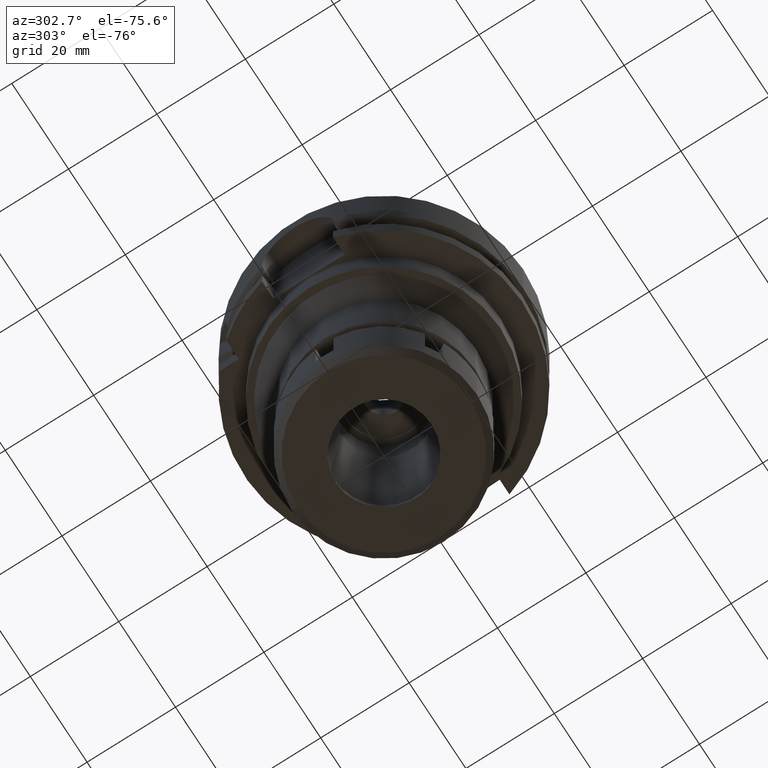
[diagram: clean part render]
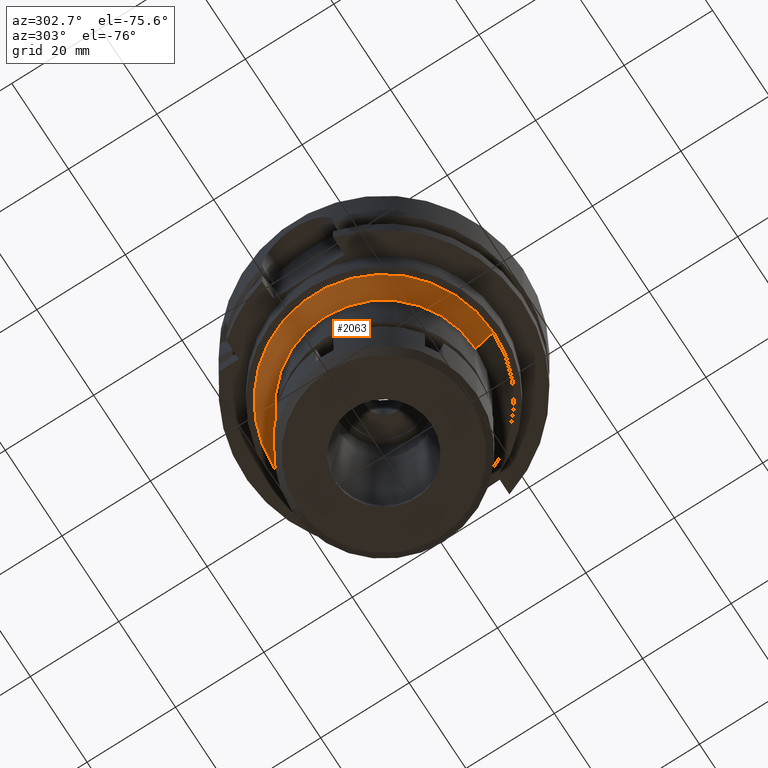
[diagram: same view with one face highlighted and labeled with its STEP entity id]
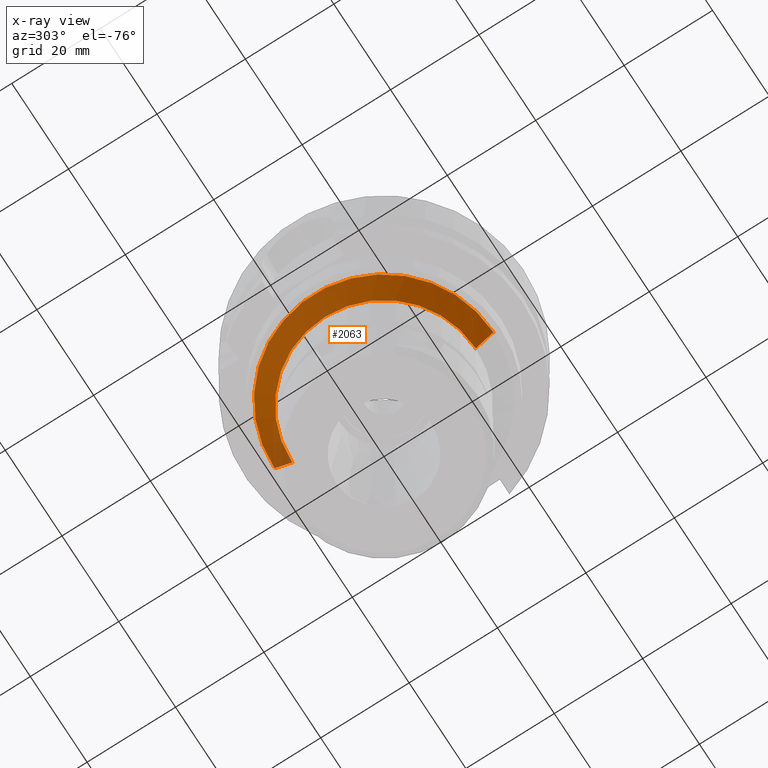
[diagram: x-ray of the same camera — body ghosted, the highlighted face saturated]
A machine part, auxiliary view. The second image highlights one B-rep face of the part: STEP entity #2063.
The next image is the same camera in x-ray: the body ghosted, the highlighted face saturated — about 5% of this face is hidden behind the body in this view.
In plain terms, the highlighted conical surface has half-angle 45 deg.
Its self-contained STEP definition (entity closure, byte-faithful):
#21 = CARTESIAN_POINT ( 'NONE',  ( 0.0000000000000000000, 0.0000000000000000000, -36.00000000000000000 ) ) ;
#33 = DIRECTION ( 'NONE',  ( 0.0000000000000000000, 0.0000000000000000000, -1.000000000000000000 ) ) ;
#341 = AXIS2_PLACEMENT_3D ( 'NONE', #21, #1966, #5797 ) ;
#431 = FACE_OUTER_BOUND ( 'NONE', #521, .T. ) ;
#521 = EDGE_LOOP ( 'NONE', ( #2739, #4100, #4297, #1527 ) ) ;
#627 = VERTEX_POINT ( 'NONE', #947 ) ;
#639 = CARTESIAN_POINT ( 'NONE',  ( 0.0000000000000000000, -20.75000000000000000, -38.00000000000000000 ) ) ;
#729 = VERTEX_POINT ( 'NONE', #1762 ) ;
#731 = CIRCLE ( 'NONE', #5805, 20.75000000000000000 ) ;
#887 = CARTESIAN_POINT ( 'NONE',  ( 0.0000000000000000000, 0.0000000000000000000, -34.00000000000000000 ) ) ;
#904 = DIRECTION ( 'NONE',  ( 0.0000000000000000000, 0.7071067811865474617, -0.7071067811865474617 ) ) ;
#924 = VERTEX_POINT ( 'NONE', #639 ) ;
#947 = CARTESIAN_POINT ( 'NONE',  ( 0.0000000000000000000, 20.75000000000000000, -38.00000000000000000 ) ) ;
#1409 = DIRECTION ( 'NONE',  ( 0.0000000000000000000, -0.7071067811865474617, -0.7071067811865474617 ) ) ;
#1431 = DIRECTION ( 'NONE',  ( 0.0000000000000000000, -1.000000000000000000, 0.0000000000000000000 ) ) ;
#1469 = CARTESIAN_POINT ( 'NONE',  ( 0.0000000000000000000, 24.75000000000000000, -34.00000000000000000 ) ) ;
#1527 = ORIENTED_EDGE ( 'NONE', *, *, #5100, .T. ) ;
#1762 = CARTESIAN_POINT ( 'NONE',  ( 0.0000000000000000000, -24.75000000000000000, -34.00000000000000000 ) ) ;
#1957 = CARTESIAN_POINT ( 'NONE',  ( 0.0000000000000000000, 24.75000000000000000, -34.00000000000000000 ) ) ;
#1966 = DIRECTION ( 'NONE',  ( 0.0000000000000000000, 0.0000000000000000000, 1.000000000000000000 ) ) ;
#1971 = CARTESIAN_POINT ( 'NONE',  ( 0.0000000000000000000, 0.0000000000000000000, -38.00000000000000000 ) ) ;
#1980 = EDGE_CURVE ( 'NONE', #729, #924, #3337, .T. ) ;
#2063 = ADVANCED_FACE ( 'NONE', ( #431 ), #2281, .T. ) ;
#2281 = CONICAL_SURFACE ( 'NONE', #341, 22.75000000000000000, 0.7853981633972997312 ) ;
#2349 = CIRCLE ( 'NONE', #3562, 24.75000000000000000 ) ;
#2478 = VERTEX_POINT ( 'NONE', #1957 ) ;
#2739 = ORIENTED_EDGE ( 'NONE', *, *, #4188, .F. ) ;
#3337 = LINE ( 'NONE', #5265, #4209 ) ;
#3562 = AXIS2_PLACEMENT_3D ( 'NONE', #887, #33, #3850 ) ;
#3670 = VECTOR ( 'NONE', #1409, 1000.000000000000114 ) ;
#3850 = DIRECTION ( 'NONE',  ( 0.0000000000000000000, -1.000000000000000000, 0.0000000000000000000 ) ) ;
#4100 = ORIENTED_EDGE ( 'NONE', *, *, #1980, .F. ) ;
#4188 = EDGE_CURVE ( 'NONE', #924, #627, #731, .T. ) ;
#4209 = VECTOR ( 'NONE', #904, 1000.000000000000114 ) ;
#4297 = ORIENTED_EDGE ( 'NONE', *, *, #5085, .T. ) ;
#4801 = LINE ( 'NONE', #1469, #3670 ) ;
#5085 = EDGE_CURVE ( 'NONE', #729, #2478, #2349, .T. ) ;
#5100 = EDGE_CURVE ( 'NONE', #2478, #627, #4801, .T. ) ;
#5265 = CARTESIAN_POINT ( 'NONE',  ( 0.0000000000000000000, -24.75000000000000000, -34.00000000000000000 ) ) ;
#5797 = DIRECTION ( 'NONE',  ( 0.0000000000000000000, 1.000000000000000000, 0.0000000000000000000 ) ) ;
#5805 = AXIS2_PLACEMENT_3D ( 'NONE', #1971, #5861, #1431 ) ;
#5861 = DIRECTION ( 'NONE',  ( 0.0000000000000000000, 0.0000000000000000000, -1.000000000000000000 ) ) ;